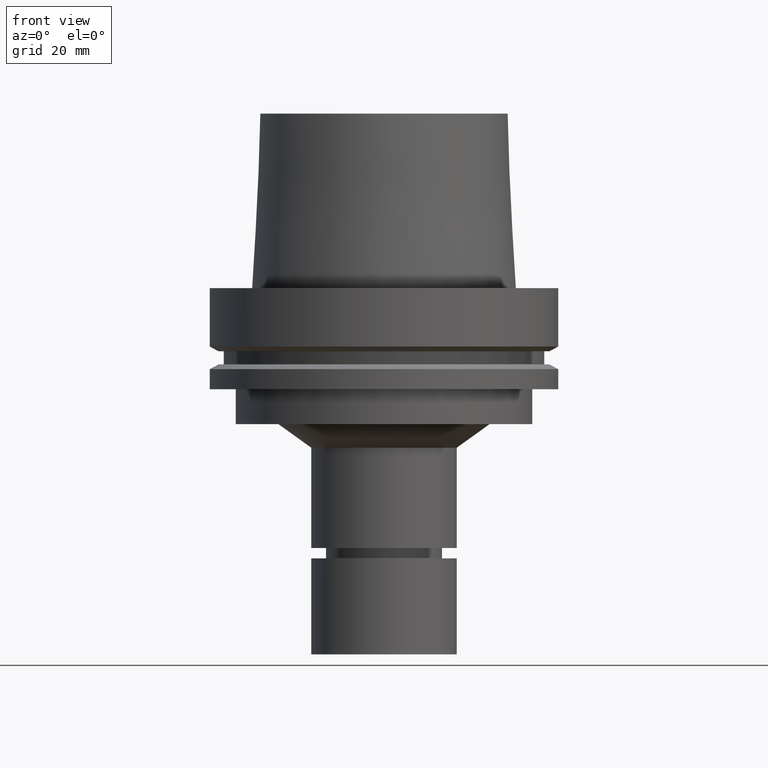
[diagram: clean part render]
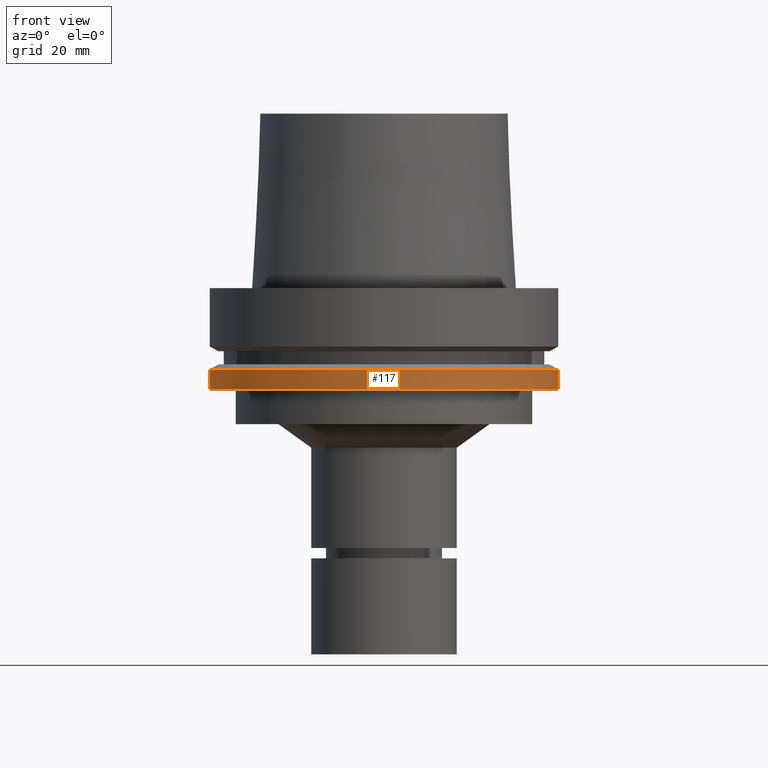
[diagram: same view with one face highlighted and labeled with its STEP entity id]
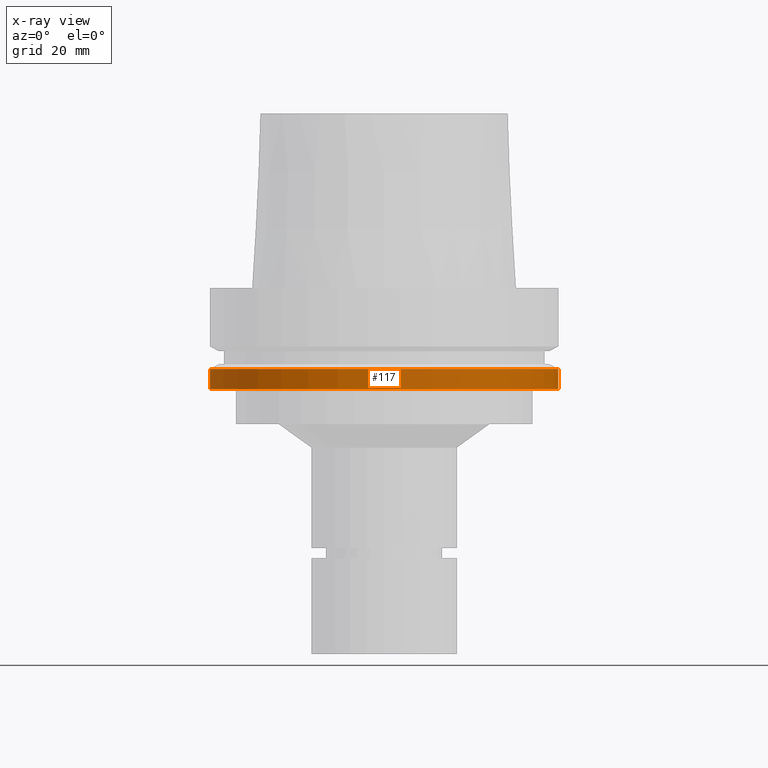
[diagram: x-ray of the same camera — body ghosted, the highlighted face saturated]
A machine part, front view. The second image highlights one B-rep face of the part: STEP entity #117.
The next image is the same camera in x-ray: the body ghosted, the highlighted face saturated — about 0% of this face is hidden behind the body in this view.
In plain terms, the highlighted cylindrical surface (bore or boss wall) has radius 50 mm, axis along (0, 0, -1).
Its self-contained STEP definition (entity closure, byte-faithful):
#117=ADVANCED_FACE('Unnamed[1]',(#278,#279),#280,.T.);
#171=EDGE_CURVE('Unnamed[1]',#362,#362,#363,.T.);
#189=EDGE_CURVE('Unnamed[1]',#390,#390,#391,.T.);
#278=FACE_BOUND('',#490,.T.);
#279=FACE_BOUND('',#491,.T.);
#280=CYLINDRICAL_SURFACE('',#492,50.0);
#362=VERTEX_POINT('',#595);
#363=CIRCLE('',#596,50.0);
#390=VERTEX_POINT('',#630);
#391=CIRCLE('',#631,50.0);
#490=EDGE_LOOP('',(#717));
#491=EDGE_LOOP('',(#718));
#492=AXIS2_PLACEMENT_3D('',#719,#720,#721);
#595=CARTESIAN_POINT('',(1.77573785876366E-015,50.0,-29.0));
#596=AXIS2_PLACEMENT_3D('',#809,#810,#811);
#630=CARTESIAN_POINT('',(1.42350465615161E-015,50.0,-23.24759526));
#631=AXIS2_PLACEMENT_3D('',#841,#842,#843);
#717=ORIENTED_EDGE('',*,*,#171,.F.);
#718=ORIENTED_EDGE('',*,*,#189,.T.);
#719=CARTESIAN_POINT('',(1.59962125745764E-015,3.19924251491527E-015,-26.12379763));
#720=DIRECTION('',(6.12323399573677E-017,1.22464679914735E-016,-1.0));
#721=DIRECTION('',(-1.23259516440783E-032,1.0,1.22464679914735E-016));
#809=CARTESIAN_POINT('',(1.77573785876366E-015,3.55147571752733E-015,-29.0));
#810=DIRECTION('',(6.12323399573677E-017,1.22464679914735E-016,-1.0));
#811=DIRECTION('',(-1.23259516440783E-032,1.0,1.22464679914735E-016));
#841=CARTESIAN_POINT('',(1.42350465615161E-015,2.84700931230322E-015,-23.24759526));
#842=DIRECTION('',(6.12323399573677E-017,1.22464679914735E-016,-1.0));
#843=DIRECTION('',(-1.23259516440783E-032,1.0,1.22464679914735E-016));